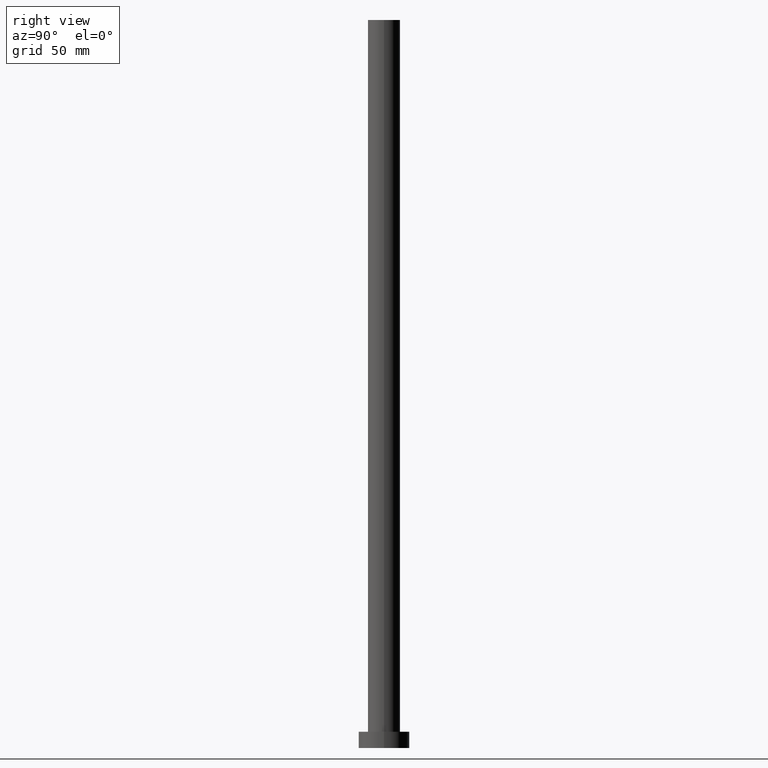
[diagram: clean part render]
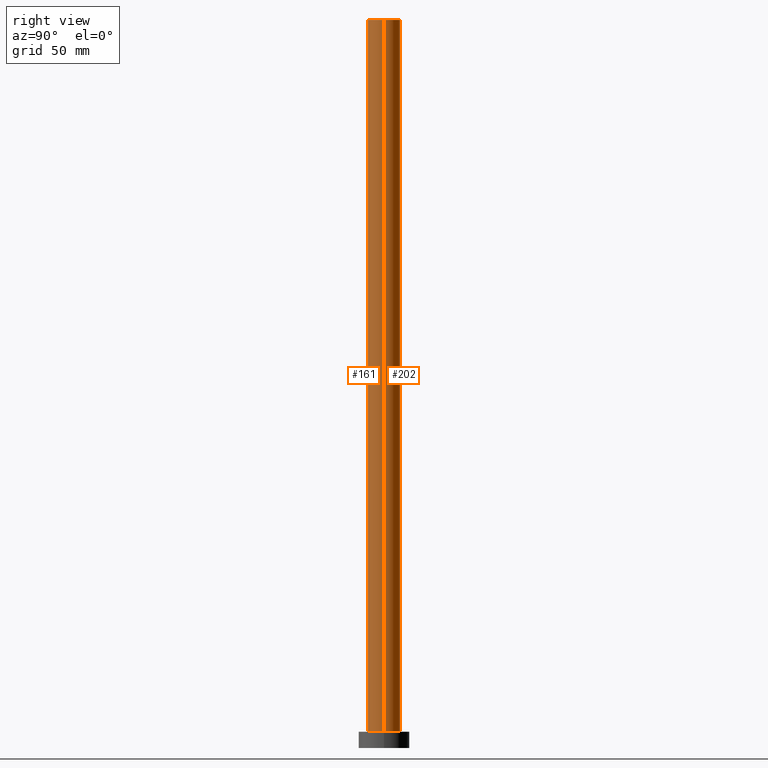
[diagram: same view with one multi-face feature highlighted, each face labeled with its STEP entity id]
A machine part, right view. The highlighted faces form ONE feature: a constant-radius fillet chain: 2 tangent blend faces with common blend radius 7 mm. The faces share edges in the B-rep.
Their STEP definitions:
[1] entity #161 (Cylinder):
#4 = EDGE_LOOP ( 'NONE', ( #238, #184, #123, #12 ) ) ;
#12 = ORIENTED_EDGE ( 'NONE', *, *, #141, .T. ) ;
#23 = DIRECTION ( 'NONE',  ( 1.000000000000000000, 0.000000000000000000, 0.000000000000000000 ) ) ;
#33 = CARTESIAN_POINT ( 'NONE',  ( 7.000000000000000888, 8.572527594031474176E-16, 315.0000000000000000 ) ) ;
#36 = DIRECTION ( 'NONE',  ( 0.000000000000000000, 0.000000000000000000, 1.000000000000000000 ) ) ;
#39 = DIRECTION ( 'NONE',  ( -1.000000000000000000, 0.000000000000000000, 0.000000000000000000 ) ) ;
#40 = CARTESIAN_POINT ( 'NONE',  ( -7.000000000000000888, 0.000000000000000000, 315.0000000000000000 ) ) ;
#41 = VERTEX_POINT ( 'NONE', #50 ) ;
#43 = CARTESIAN_POINT ( 'NONE',  ( 7.000000000000000888, 8.572527594031474176E-16, 315.0000000000000000 ) ) ;
#47 = DIRECTION ( 'NONE',  ( -0.000000000000000000, -0.000000000000000000, -1.000000000000000000 ) ) ;
#50 = CARTESIAN_POINT ( 'NONE',  ( 7.000000000000000888, 8.572527594031474176E-16, 7.000000000000000000 ) ) ;
#56 = DIRECTION ( 'NONE',  ( 0.000000000000000000, 0.000000000000000000, 1.000000000000000000 ) ) ;
#58 = EDGE_CURVE ( 'NONE', #100, #140, #186, .T. ) ;
#60 = AXIS2_PLACEMENT_3D ( 'NONE', #215, #56, #250 ) ;
#83 = CARTESIAN_POINT ( 'NONE',  ( 0.000000000000000000, 0.000000000000000000, 315.0000000000000000 ) ) ;
#100 = VERTEX_POINT ( 'NONE', #209 ) ;
#102 = LINE ( 'NONE', #40, #150 ) ;
#111 = EDGE_CURVE ( 'NONE', #100, #236, #102, .T. ) ;
#113 = AXIS2_PLACEMENT_3D ( 'NONE', #142, #36, #23 ) ;
#123 = ORIENTED_EDGE ( 'NONE', *, *, #111, .T. ) ;
#128 = FACE_OUTER_BOUND ( 'NONE', #4, .T. ) ;
#130 = AXIS2_PLACEMENT_3D ( 'NONE', #83, #212, #39 ) ;
#140 = VERTEX_POINT ( 'NONE', #43 ) ;
#141 = EDGE_CURVE ( 'NONE', #236, #41, #208, .T. ) ;
#142 = CARTESIAN_POINT ( 'NONE',  ( 0.000000000000000000, 0.000000000000000000, 315.0000000000000000 ) ) ;
#146 = CYLINDRICAL_SURFACE ( 'NONE', #130, 7.000000000000000888 ) ;
#150 = VECTOR ( 'NONE', #249, 1000.000000000000000 ) ;
#161 = ADVANCED_FACE ( 'NONE', ( #128 ), #146, .T. ) ;
#166 = VECTOR ( 'NONE', #47, 1000.000000000000000 ) ;
#184 = ORIENTED_EDGE ( 'NONE', *, *, #58, .F. ) ;
#186 = CIRCLE ( 'NONE', #113, 7.000000000000000888 ) ;
#208 = CIRCLE ( 'NONE', #60, 7.000000000000000888 ) ;
#209 = CARTESIAN_POINT ( 'NONE',  ( -7.000000000000000888, 0.000000000000000000, 315.0000000000000000 ) ) ;
#212 = DIRECTION ( 'NONE',  ( -0.000000000000000000, -0.000000000000000000, -1.000000000000000000 ) ) ;
#215 = CARTESIAN_POINT ( 'NONE',  ( 0.000000000000000000, 0.000000000000000000, 7.000000000000000000 ) ) ;
#217 = EDGE_CURVE ( 'NONE', #140, #41, #235, .T. ) ;
#235 = LINE ( 'NONE', #33, #166 ) ;
#236 = VERTEX_POINT ( 'NONE', #237 ) ;
#237 = CARTESIAN_POINT ( 'NONE',  ( -7.000000000000000888, 0.000000000000000000, 7.000000000000000000 ) ) ;
#238 = ORIENTED_EDGE ( 'NONE', *, *, #217, .F. ) ;
#249 = DIRECTION ( 'NONE',  ( -0.000000000000000000, -0.000000000000000000, -1.000000000000000000 ) ) ;
#250 = DIRECTION ( 'NONE',  ( 1.000000000000000000, 0.000000000000000000, 0.000000000000000000 ) ) ;
[2] entity #202 (Cylinder):
#3 = EDGE_CURVE ( 'NONE', #140, #100, #240, .T. ) ;
#24 = FACE_OUTER_BOUND ( 'NONE', #201, .T. ) ;
#33 = CARTESIAN_POINT ( 'NONE',  ( 7.000000000000000888, 8.572527594031474176E-16, 315.0000000000000000 ) ) ;
#40 = CARTESIAN_POINT ( 'NONE',  ( -7.000000000000000888, 0.000000000000000000, 315.0000000000000000 ) ) ;
#41 = VERTEX_POINT ( 'NONE', #50 ) ;
#43 = CARTESIAN_POINT ( 'NONE',  ( 7.000000000000000888, 8.572527594031474176E-16, 315.0000000000000000 ) ) ;
#47 = DIRECTION ( 'NONE',  ( -0.000000000000000000, -0.000000000000000000, -1.000000000000000000 ) ) ;
#50 = CARTESIAN_POINT ( 'NONE',  ( 7.000000000000000888, 8.572527594031474176E-16, 7.000000000000000000 ) ) ;
#80 = ORIENTED_EDGE ( 'NONE', *, *, #217, .T. ) ;
#81 = AXIS2_PLACEMENT_3D ( 'NONE', #149, #92, #219 ) ;
#92 = DIRECTION ( 'NONE',  ( -0.000000000000000000, -0.000000000000000000, -1.000000000000000000 ) ) ;
#100 = VERTEX_POINT ( 'NONE', #209 ) ;
#102 = LINE ( 'NONE', #40, #150 ) ;
#111 = EDGE_CURVE ( 'NONE', #100, #236, #102, .T. ) ;
#114 = EDGE_CURVE ( 'NONE', #41, #236, #170, .T. ) ;
#121 = ORIENTED_EDGE ( 'NONE', *, *, #3, .F. ) ;
#133 = ORIENTED_EDGE ( 'NONE', *, *, #111, .F. ) ;
#140 = VERTEX_POINT ( 'NONE', #43 ) ;
#148 = DIRECTION ( 'NONE',  ( 1.000000000000000000, 0.000000000000000000, 0.000000000000000000 ) ) ;
#149 = CARTESIAN_POINT ( 'NONE',  ( 0.000000000000000000, 0.000000000000000000, 315.0000000000000000 ) ) ;
#150 = VECTOR ( 'NONE', #249, 1000.000000000000000 ) ;
#151 = CYLINDRICAL_SURFACE ( 'NONE', #81, 7.000000000000000888 ) ;
#163 = ORIENTED_EDGE ( 'NONE', *, *, #114, .T. ) ;
#166 = VECTOR ( 'NONE', #47, 1000.000000000000000 ) ;
#170 = CIRCLE ( 'NONE', #231, 7.000000000000000888 ) ;
#172 = CARTESIAN_POINT ( 'NONE',  ( 0.000000000000000000, 0.000000000000000000, 315.0000000000000000 ) ) ;
#179 = DIRECTION ( 'NONE',  ( 0.000000000000000000, 0.000000000000000000, 1.000000000000000000 ) ) ;
#191 = DIRECTION ( 'NONE',  ( 1.000000000000000000, 0.000000000000000000, 0.000000000000000000 ) ) ;
#194 = DIRECTION ( 'NONE',  ( 0.000000000000000000, 0.000000000000000000, 1.000000000000000000 ) ) ;
#201 = EDGE_LOOP ( 'NONE', ( #121, #80, #163, #133 ) ) ;
#202 = ADVANCED_FACE ( 'NONE', ( #24 ), #151, .T. ) ;
#206 = AXIS2_PLACEMENT_3D ( 'NONE', #172, #194, #191 ) ;
#209 = CARTESIAN_POINT ( 'NONE',  ( -7.000000000000000888, 0.000000000000000000, 315.0000000000000000 ) ) ;
#217 = EDGE_CURVE ( 'NONE', #140, #41, #235, .T. ) ;
#219 = DIRECTION ( 'NONE',  ( -1.000000000000000000, 0.000000000000000000, 0.000000000000000000 ) ) ;
#231 = AXIS2_PLACEMENT_3D ( 'NONE', #252, #179, #148 ) ;
#235 = LINE ( 'NONE', #33, #166 ) ;
#236 = VERTEX_POINT ( 'NONE', #237 ) ;
#237 = CARTESIAN_POINT ( 'NONE',  ( -7.000000000000000888, 0.000000000000000000, 7.000000000000000000 ) ) ;
#240 = CIRCLE ( 'NONE', #206, 7.000000000000000888 ) ;
#249 = DIRECTION ( 'NONE',  ( -0.000000000000000000, -0.000000000000000000, -1.000000000000000000 ) ) ;
#252 = CARTESIAN_POINT ( 'NONE',  ( 0.000000000000000000, 0.000000000000000000, 7.000000000000000000 ) ) ;